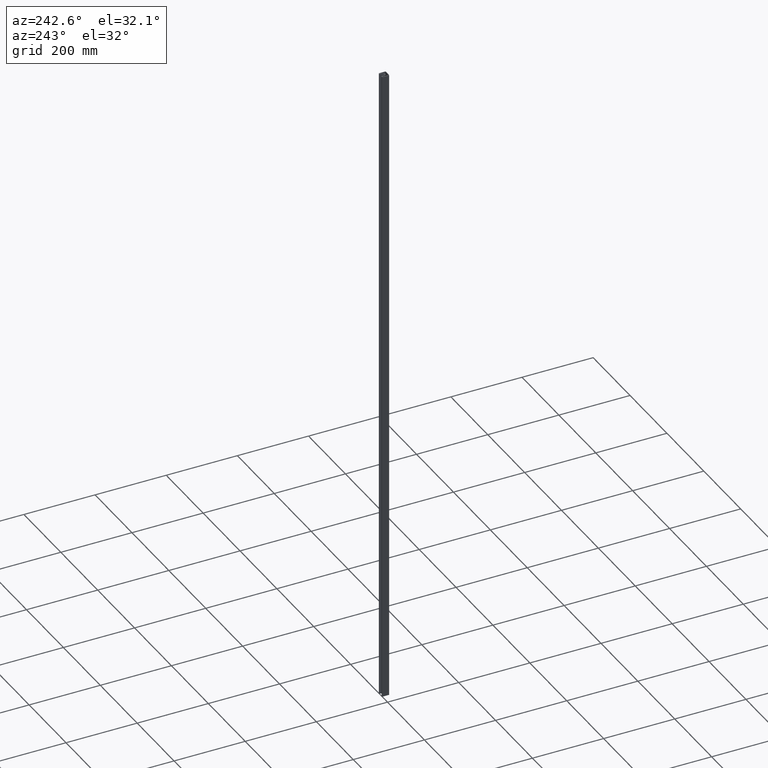
[diagram: clean part render]
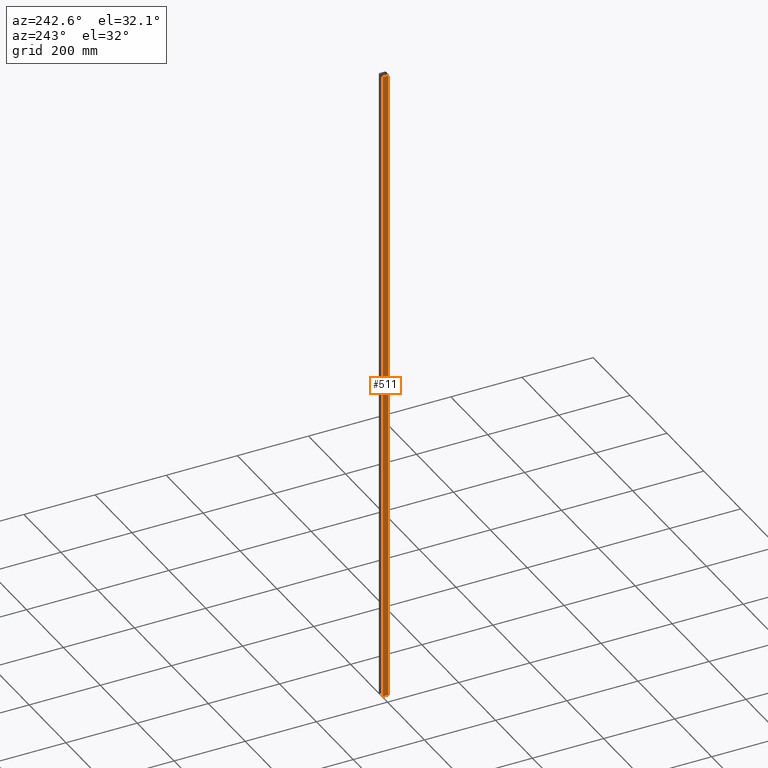
[diagram: same view with one face highlighted and labeled with its STEP entity id]
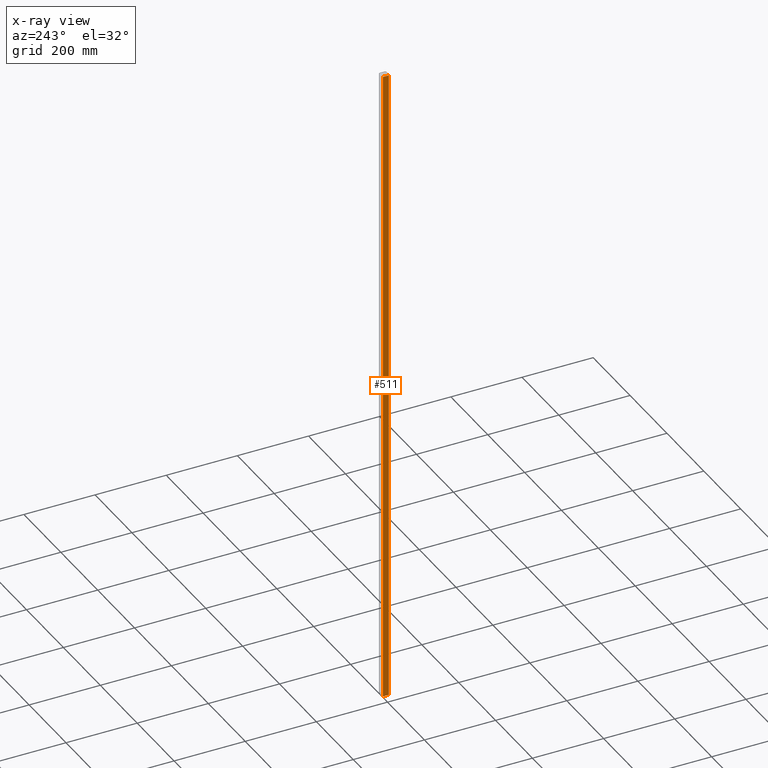
[diagram: x-ray of the same camera — body ghosted, the highlighted face saturated]
A machine part, auxiliary view. The second image highlights one B-rep face of the part: STEP entity #511.
The next image is the same camera in x-ray: the body ghosted, the highlighted face saturated — about 0% of this face is hidden behind the body in this view.
In plain terms, the highlighted planar face has unit normal (-1, 0, 0).
Its self-contained STEP definition (entity closure, byte-faithful):
#28 = CARTESIAN_POINT ( 'NONE',  ( -10.30000000000000071, 2.000000000000000000, -1825.000000000000000 ) ) ;
#29 = VECTOR ( 'NONE', #545, 1000.000000000000000 ) ;
#39 = EDGE_CURVE ( 'NONE', #541, #427, #109, .T. ) ;
#109 = LINE ( 'NONE', #707, #229 ) ;
#112 = ORIENTED_EDGE ( 'NONE', *, *, #838, .F. ) ;
#120 = DIRECTION ( 'NONE',  ( 0.000000000000000000, 0.000000000000000000, 1.000000000000000000 ) ) ;
#136 = DIRECTION ( 'NONE',  ( 0.000000000000000000, 0.000000000000000000, 1.000000000000000000 ) ) ;
#154 = CARTESIAN_POINT ( 'NONE',  ( -10.30000000000000071, 18.00000000000000355, 0.000000000000000000 ) ) ;
#180 = ORIENTED_EDGE ( 'NONE', *, *, #526, .T. ) ;
#199 = CARTESIAN_POINT ( 'NONE',  ( -10.30000000000000071, 18.00000000000000355, -1825.000000000000000 ) ) ;
#212 = AXIS2_PLACEMENT_3D ( 'NONE', #908, #1002, #136 ) ;
#229 = VECTOR ( 'NONE', #120, 1000.000000000000000 ) ;
#235 = CARTESIAN_POINT ( 'NONE',  ( -10.30000000000000071, 18.00000000000000355, 0.000000000000000000 ) ) ;
#248 = EDGE_CURVE ( 'NONE', #630, #427, #1105, .T. ) ;
#308 = ORIENTED_EDGE ( 'NONE', *, *, #248, .F. ) ;
#406 = DIRECTION ( 'NONE',  ( 0.000000000000000000, 0.000000000000000000, 1.000000000000000000 ) ) ;
#427 = VERTEX_POINT ( 'NONE', #960 ) ;
#460 = VERTEX_POINT ( 'NONE', #817 ) ;
#506 = DIRECTION ( 'NONE',  ( 0.000000000000000000, -1.000000000000000000, 0.000000000000000000 ) ) ;
#511 = ADVANCED_FACE ( 'NONE', ( #1080 ), #802, .T. ) ;
#526 = EDGE_CURVE ( 'NONE', #460, #541, #978, .T. ) ;
#541 = VERTEX_POINT ( 'NONE', #28 ) ;
#545 = DIRECTION ( 'NONE',  ( 0.000000000000000000, -1.000000000000000000, 0.000000000000000000 ) ) ;
#581 = LINE ( 'NONE', #745, #625 ) ;
#625 = VECTOR ( 'NONE', #406, 1000.000000000000000 ) ;
#630 = VERTEX_POINT ( 'NONE', #235 ) ;
#707 = CARTESIAN_POINT ( 'NONE',  ( -10.30000000000000071, 2.000000000000000000, -1825.000000000000000 ) ) ;
#745 = CARTESIAN_POINT ( 'NONE',  ( -10.30000000000000071, 18.00000000000000355, -1825.000000000000000 ) ) ;
#779 = ORIENTED_EDGE ( 'NONE', *, *, #39, .T. ) ;
#802 = PLANE ( 'NONE',  #212 ) ;
#817 = CARTESIAN_POINT ( 'NONE',  ( -10.30000000000000071, 18.00000000000000355, -1825.000000000000000 ) ) ;
#838 = EDGE_CURVE ( 'NONE', #460, #630, #581, .T. ) ;
#908 = CARTESIAN_POINT ( 'NONE',  ( -10.30000000000000071, 18.00000000000000355, -1825.000000000000000 ) ) ;
#960 = CARTESIAN_POINT ( 'NONE',  ( -10.30000000000000071, 2.000000000000000000, 0.000000000000000000 ) ) ;
#964 = EDGE_LOOP ( 'NONE', ( #308, #112, #180, #779 ) ) ;
#978 = LINE ( 'NONE', #199, #29 ) ;
#1002 = DIRECTION ( 'NONE',  ( -1.000000000000000000, 0.000000000000000000, 0.000000000000000000 ) ) ;
#1060 = VECTOR ( 'NONE', #506, 1000.000000000000000 ) ;
#1080 = FACE_OUTER_BOUND ( 'NONE', #964, .T. ) ;
#1105 = LINE ( 'NONE', #154, #1060 ) ;